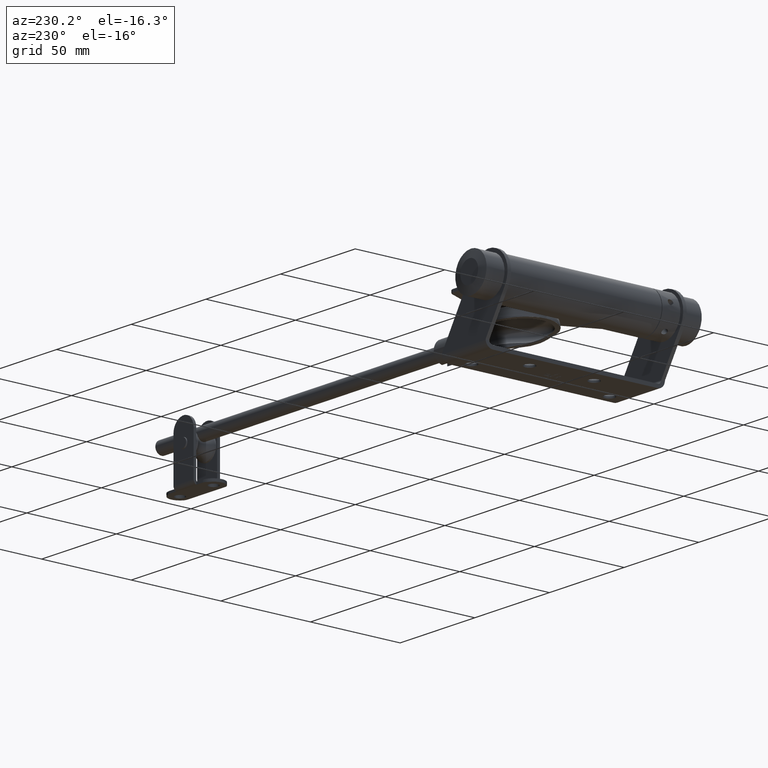
[diagram: clean part render]
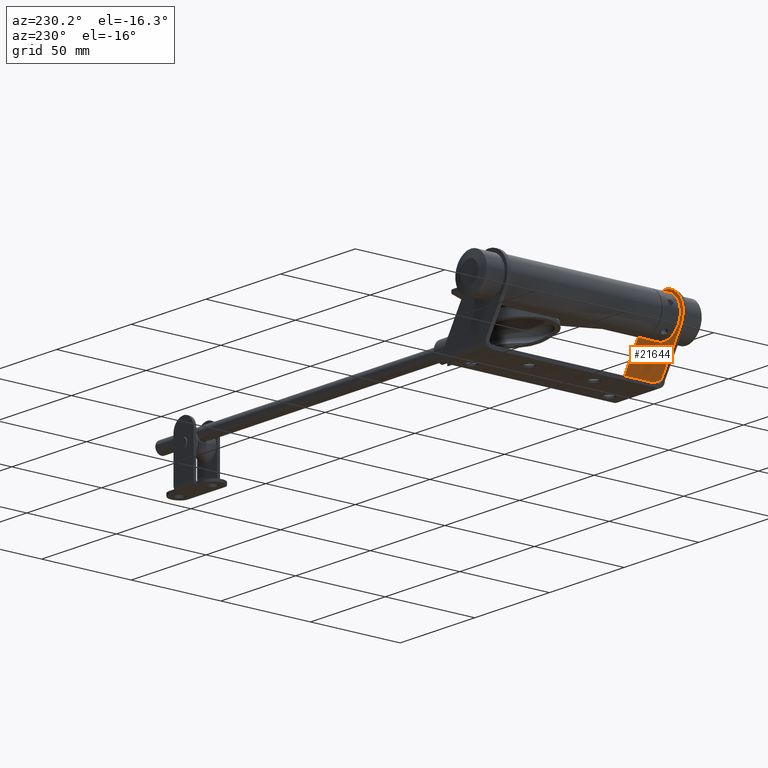
[diagram: same view with one face highlighted and labeled with its STEP entity id]
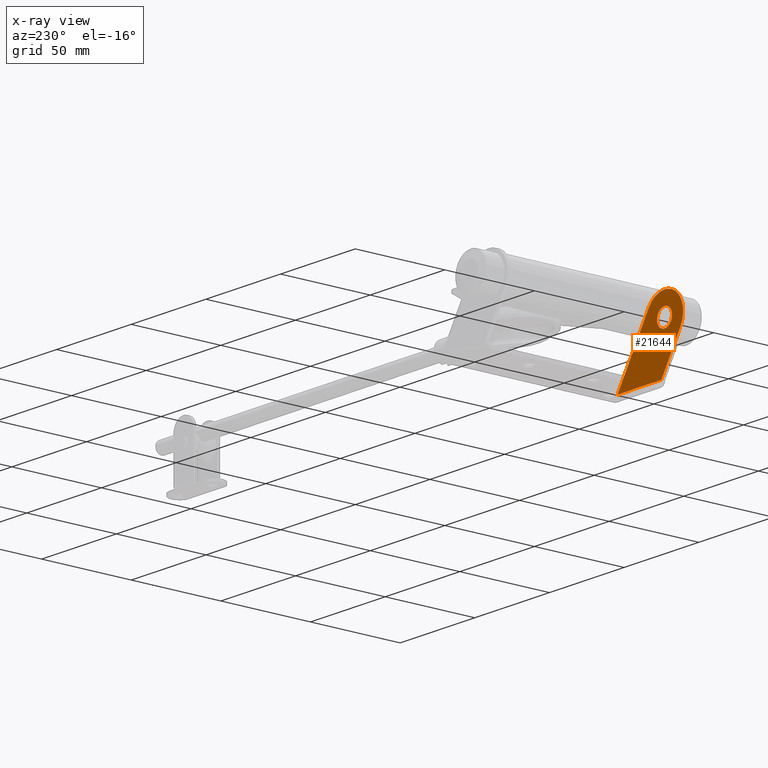
[diagram: x-ray of the same camera — body ghosted, the highlighted face saturated]
A machine part, auxiliary view. The second image highlights one B-rep face of the part: STEP entity #21644.
The next image is the same camera in x-ray: the body ghosted, the highlighted face saturated — about 0% of this face is hidden behind the body in this view.
In plain terms, the highlighted planar face has unit normal (0, -1, -0).
Its self-contained STEP definition (entity closure, byte-faithful):
#188 = VERTEX_POINT ( 'NONE', #1185 ) ;
#247 = AXIS2_PLACEMENT_3D ( 'NONE', #16544, #5596, #11120 ) ;
#550 = EDGE_CURVE ( 'NONE', #4213, #188, #14486, .T. ) ;
#562 = EDGE_CURVE ( 'NONE', #10624, #4213, #15902, .T. ) ;
#893 = DIRECTION ( 'NONE',  ( 0.000000000000000000, 0.000000000000000000, -1.000000000000000000 ) ) ;
#1130 = AXIS2_PLACEMENT_3D ( 'NONE', #17065, #4526, #893 ) ;
#1185 = CARTESIAN_POINT ( 'NONE',  ( -7.610389561456628371, -48.00000000000000711, 4.480773385382875063 ) ) ;
#1375 = EDGE_CURVE ( 'NONE', #11015, #2335, #4683, .T. ) ;
#1618 = EDGE_CURVE ( 'NONE', #2335, #188, #8622, .T. ) ;
#2335 = VERTEX_POINT ( 'NONE', #4491 ) ;
#3042 = VECTOR ( 'NONE', #16024, 1000.000000000000000 ) ;
#3278 = CARTESIAN_POINT ( 'NONE',  ( -9.499999999999998224, -48.00000000000001421, 31.50000000000001421 ) ) ;
#3638 = VERTEX_POINT ( 'NONE', #16181 ) ;
#3789 = VECTOR ( 'NONE', #11253, 1000.000000000000114 ) ;
#3992 = CARTESIAN_POINT ( 'NONE',  ( -9.499999999999998224, -48.00000000000001421, 26.49999999999997513 ) ) ;
#4213 = VERTEX_POINT ( 'NONE', #23564 ) ;
#4491 = CARTESIAN_POINT ( 'NONE',  ( -20.15972764977183473, -48.00000000000001421, 24.97158469207958476 ) ) ;
#4526 = DIRECTION ( 'NONE',  ( 0.000000000000000000, -1.000000000000000000, -2.312964634635743450E-16 ) ) ;
#4683 = CIRCLE ( 'NONE', #8847, 12.50000000000000000 ) ;
#5596 = DIRECTION ( 'NONE',  ( 0.000000000000000000, -1.000000000000000000, -2.312964634635743450E-16 ) ) ;
#6068 = CARTESIAN_POINT ( 'NONE',  ( 19.99999999999999645, -48.00000000000000711, 3.436226936115601038 ) ) ;
#6530 = ORIENTED_EDGE ( 'NONE', *, *, #1375, .F. ) ;
#6859 = CARTESIAN_POINT ( 'NONE',  ( 23.78153290667607322, -48.00000000000000711, 1.091077284676865711 ) ) ;
#7033 = FACE_BOUND ( 'NONE', #15330, .T. ) ;
#7600 = ORIENTED_EDGE ( 'NONE', *, *, #562, .T. ) ;
#7978 = DIRECTION ( 'NONE',  ( -1.214306433183764966E-14, 0.000000000000000000, -1.000000000000000000 ) ) ;
#8441 = FACE_OUTER_BOUND ( 'NONE', #13503, .T. ) ;
#8622 = LINE ( 'NONE', #15236, #3789 ) ;
#8847 = AXIS2_PLACEMENT_3D ( 'NONE', #3278, #12282, #17885 ) ;
#10624 = VERTEX_POINT ( 'NONE', #17288 ) ;
#10676 = DIRECTION ( 'NONE',  ( 0.000000000000000000, -1.000000000000000000, -2.312964634635743450E-16 ) ) ;
#11015 = VERTEX_POINT ( 'NONE', #19886 ) ;
#11037 = CIRCLE ( 'NONE', #1130, 5.000000000000004441 ) ;
#11120 = DIRECTION ( 'NONE',  ( 0.000000000000000000, 2.312964634635743450E-16, -1.000000000000000000 ) ) ;
#11253 = DIRECTION ( 'NONE',  ( 0.5222732246336361239, 1.972445845501681311E-16, -0.8527782119817458595 ) ) ;
#11930 = VECTOR ( 'NONE', #12513, 1000.000000000000114 ) ;
#12282 = DIRECTION ( 'NONE',  ( 0.000000000000000000, -1.000000000000000000, -2.312964634635743450E-16 ) ) ;
#12513 = DIRECTION ( 'NONE',  ( -0.5222732246336361239, -1.972445845501681311E-16, 0.8527782119817458595 ) ) ;
#13503 = EDGE_LOOP ( 'NONE', ( #17722, #21609, #7600, #18323, #14490, #6530 ) ) ;
#13857 = CARTESIAN_POINT ( 'NONE',  ( 22.00000000000000000, -48.00000000000000711, 3.999999999999986233 ) ) ;
#14486 = CIRCLE ( 'NONE', #18634, 2.000000000000000000 ) ;
#14490 = ORIENTED_EDGE ( 'NONE', *, *, #1618, .F. ) ;
#15236 = CARTESIAN_POINT ( 'NONE',  ( 2.462077607132420631, -48.00000000000000000, -11.96575333116404316 ) ) ;
#15254 = DIRECTION ( 'NONE',  ( -0.000000000000000000, 1.000000000000000000, 2.312964634635743450E-16 ) ) ;
#15330 = EDGE_LOOP ( 'NONE', ( #18074 ) ) ;
#15902 = LINE ( 'NONE', #13857, #3042 ) ;
#16024 = DIRECTION ( 'NONE',  ( -1.000000000000000000, -0.000000000000000000, -0.000000000000000000 ) ) ;
#16181 = CARTESIAN_POINT ( 'NONE',  ( 21.70555642396348972, -48.00000000000000711, 4.480773385382875063 ) ) ;
#16214 = CIRCLE ( 'NONE', #22187, 2.000000000000000000 ) ;
#16544 = CARTESIAN_POINT ( 'NONE',  ( 22.00000000000000000, -48.00000000000000711, -1.341519488088730767E-14 ) ) ;
#16790 = LINE ( 'NONE', #6859, #11930 ) ;
#17065 = CARTESIAN_POINT ( 'NONE',  ( -9.499999999999998224, -48.00000000000001421, 31.49999999999997868 ) ) ;
#17288 = CARTESIAN_POINT ( 'NONE',  ( 21.91889549805048176, -48.00000000000000711, 3.999999999999986233 ) ) ;
#17527 = VERTEX_POINT ( 'NONE', #3992 ) ;
#17722 = ORIENTED_EDGE ( 'NONE', *, *, #19041, .F. ) ;
#17885 = DIRECTION ( 'NONE',  ( 0.000000000000000000, 0.000000000000000000, -1.000000000000000000 ) ) ;
#18013 = CARTESIAN_POINT ( 'NONE',  ( -9.315945985420118092, -48.00000000000000711, 3.436226936115599262 ) ) ;
#18074 = ORIENTED_EDGE ( 'NONE', *, *, #22519, .T. ) ;
#18323 = ORIENTED_EDGE ( 'NONE', *, *, #550, .T. ) ;
#18634 = AXIS2_PLACEMENT_3D ( 'NONE', #18013, #10676, #19687 ) ;
#18893 = EDGE_CURVE ( 'NONE', #3638, #10624, #16214, .T. ) ;
#19041 = EDGE_CURVE ( 'NONE', #3638, #11015, #16790, .T. ) ;
#19687 = DIRECTION ( 'NONE',  ( 0.000000000000000000, 0.000000000000000000, -1.000000000000000000 ) ) ;
#19886 = CARTESIAN_POINT ( 'NONE',  ( 1.159727649771815416, -48.00000000000001421, 38.02841530792049696 ) ) ;
#20288 = PLANE ( 'NONE',  #247 ) ;
#21609 = ORIENTED_EDGE ( 'NONE', *, *, #18893, .T. ) ;
#21644 = ADVANCED_FACE ( 'NONE', ( #7033, #8441 ), #20288, .F. ) ;
#22187 = AXIS2_PLACEMENT_3D ( 'NONE', #6068, #15254, #7978 ) ;
#22519 = EDGE_CURVE ( 'NONE', #17527, #17527, #11037, .T. ) ;
#23564 = CARTESIAN_POINT ( 'NONE',  ( -7.397050487369632776, -48.00000000000000711, 3.999999999999986233 ) ) ;